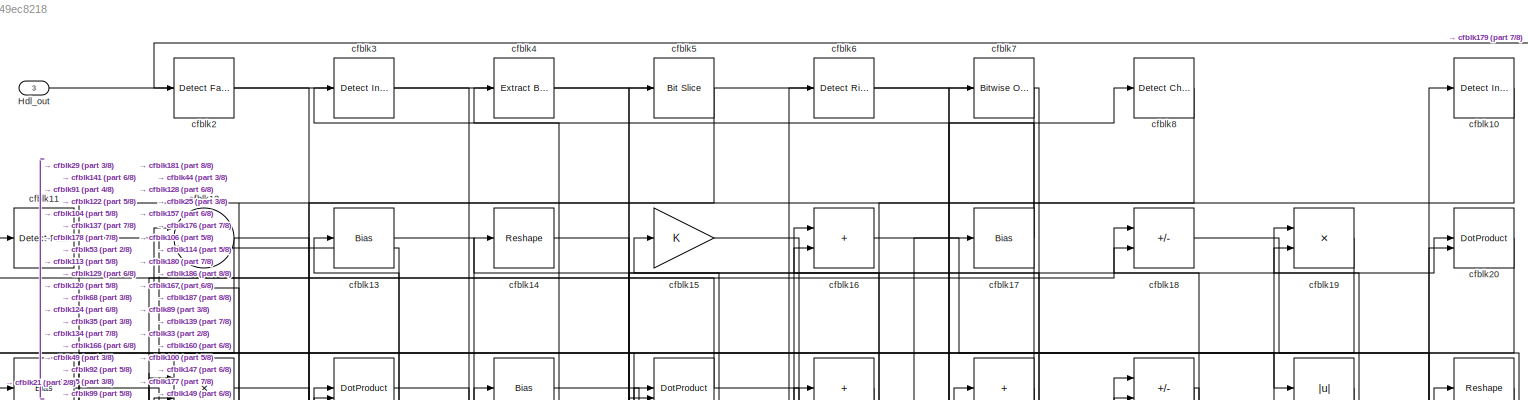
[diagram: root canvas - part 1/8, full width, top band]
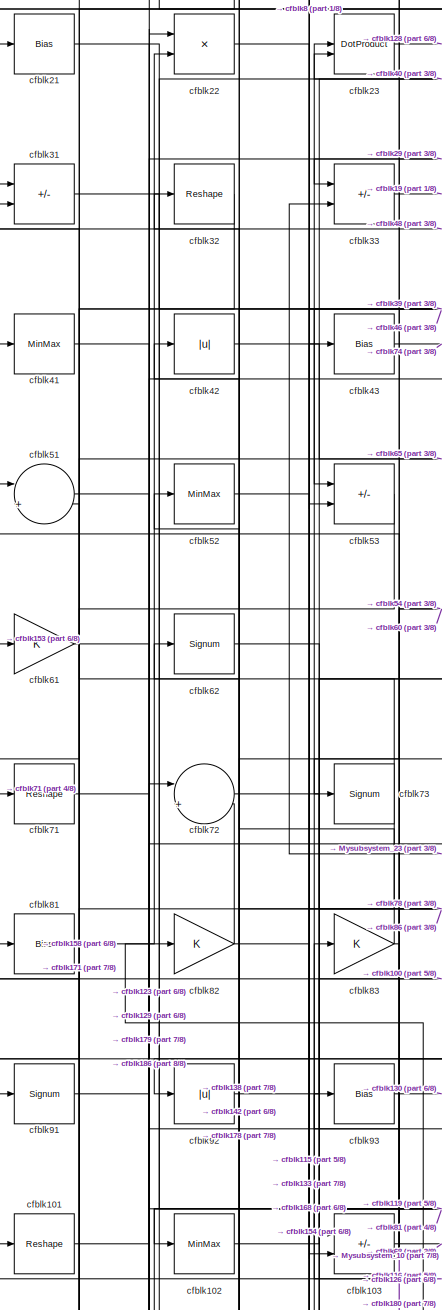
[diagram: root canvas - part 2/8, middle left region]
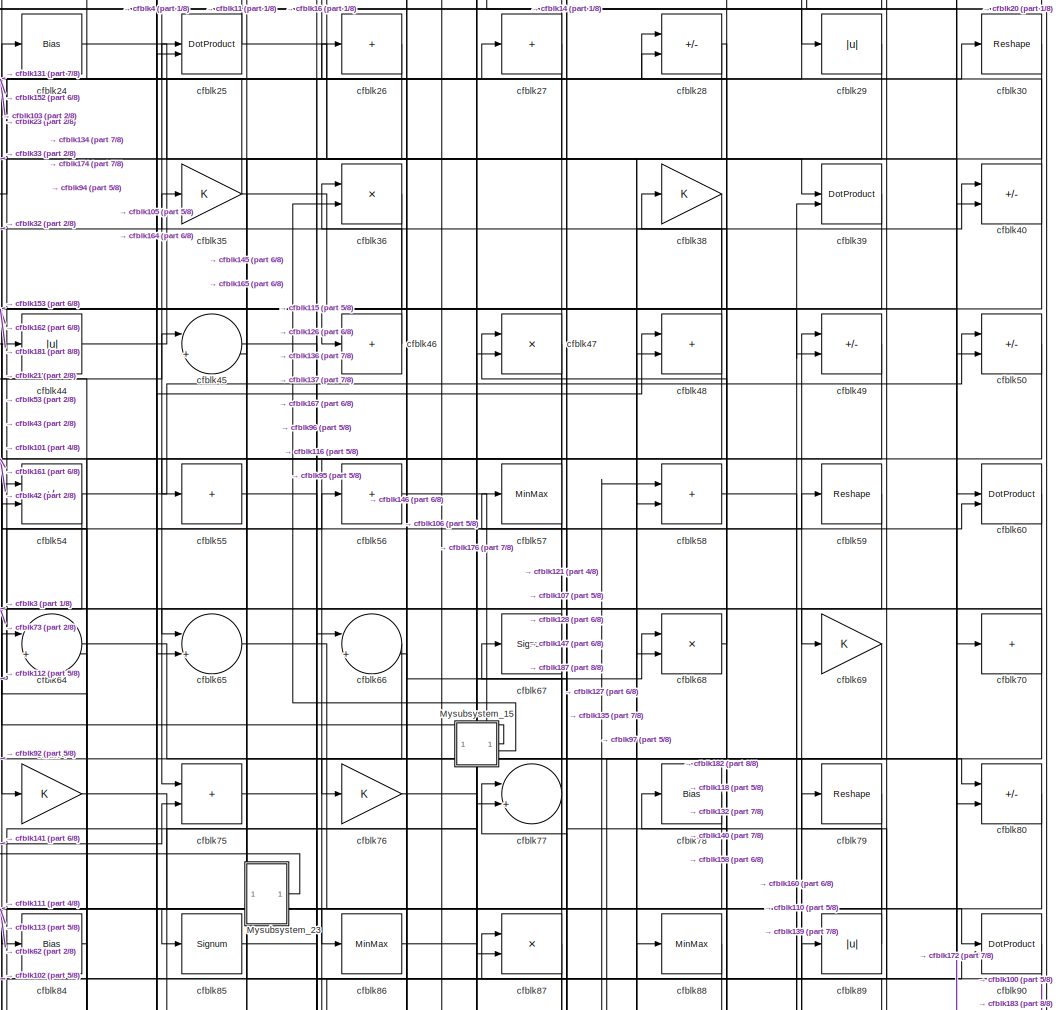
[diagram: root canvas - part 3/8, top center region]
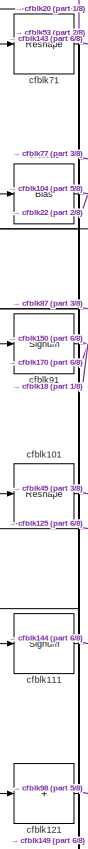
[diagram: root canvas - part 4/8, middle left region]
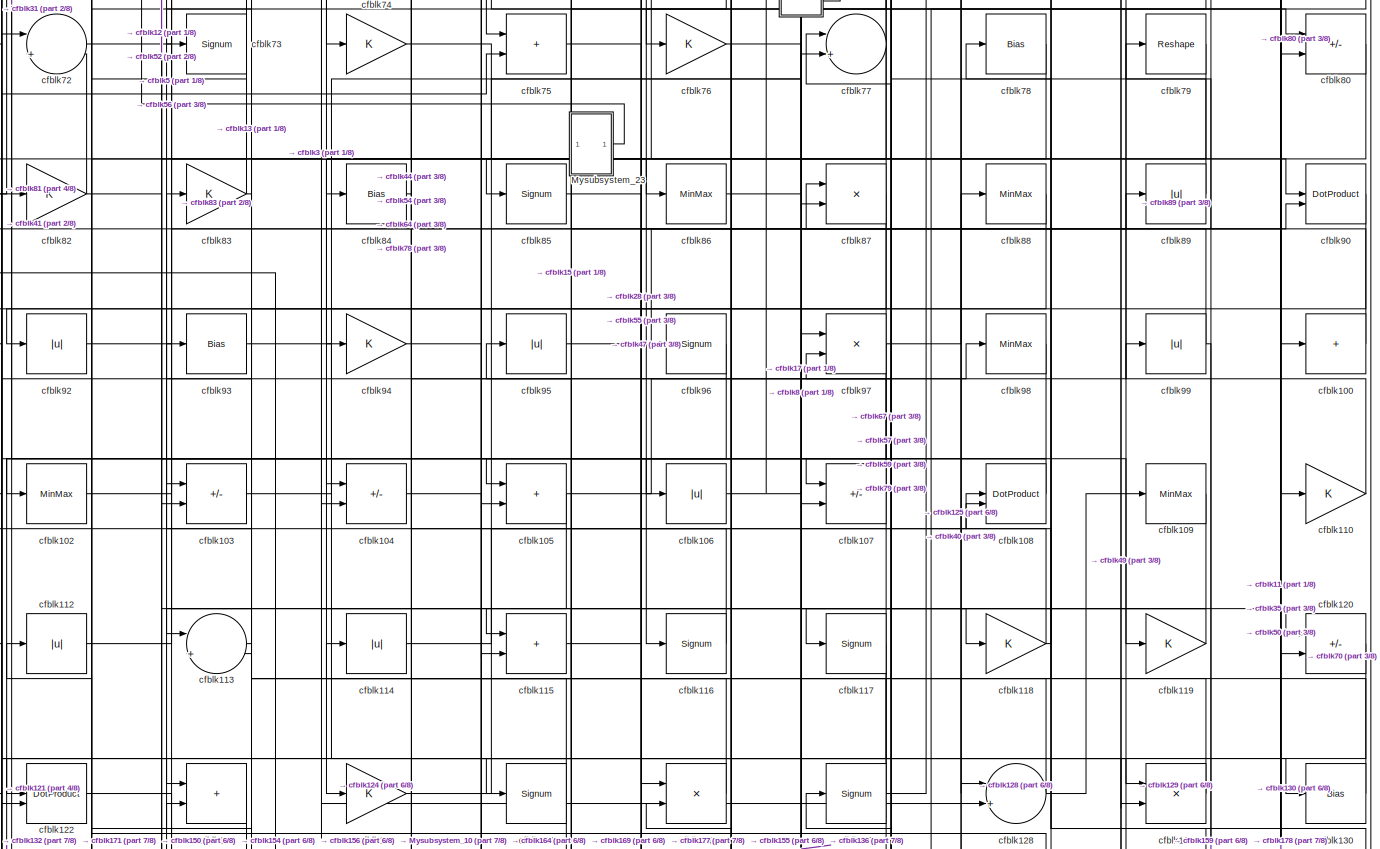
[diagram: root canvas - part 5/8, full width, middle band]
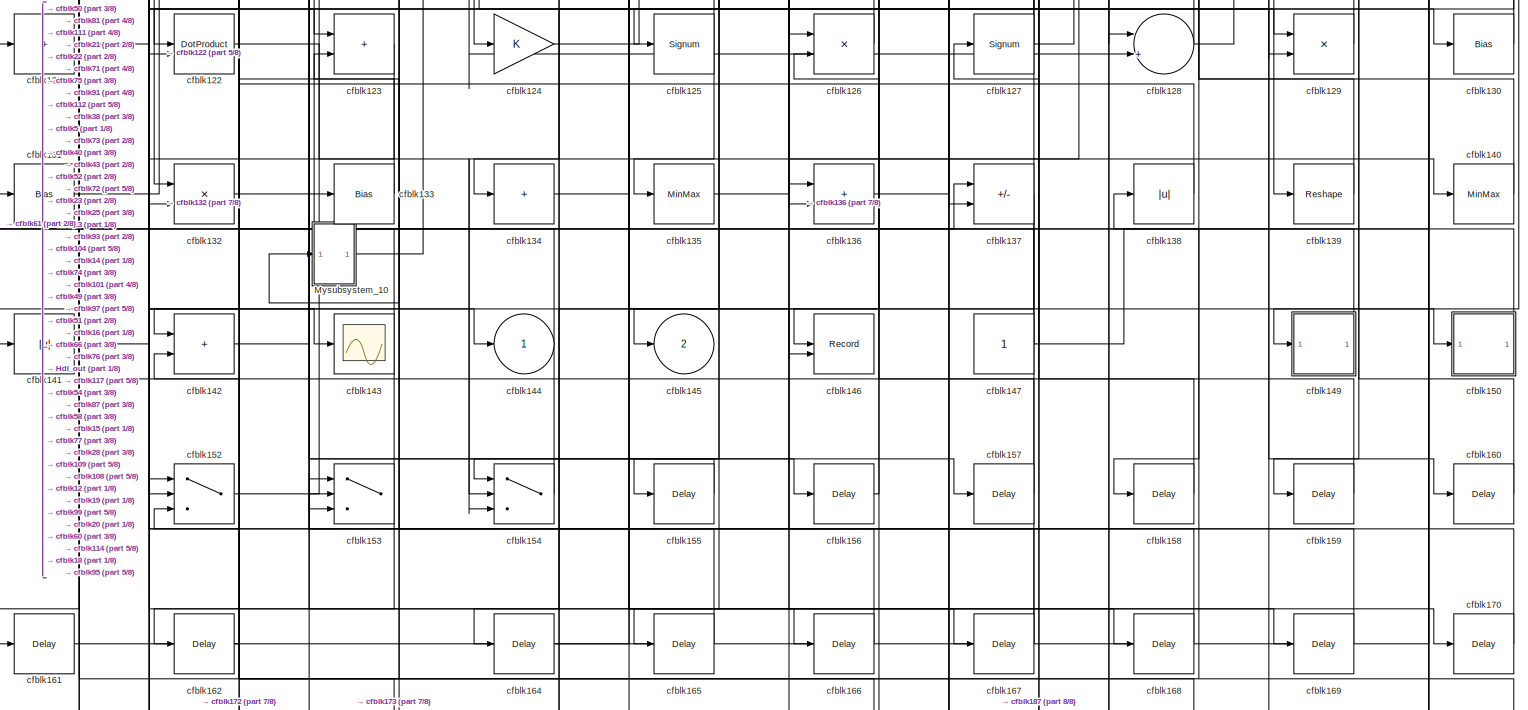
[diagram: root canvas - part 6/8, full width, bottom band]
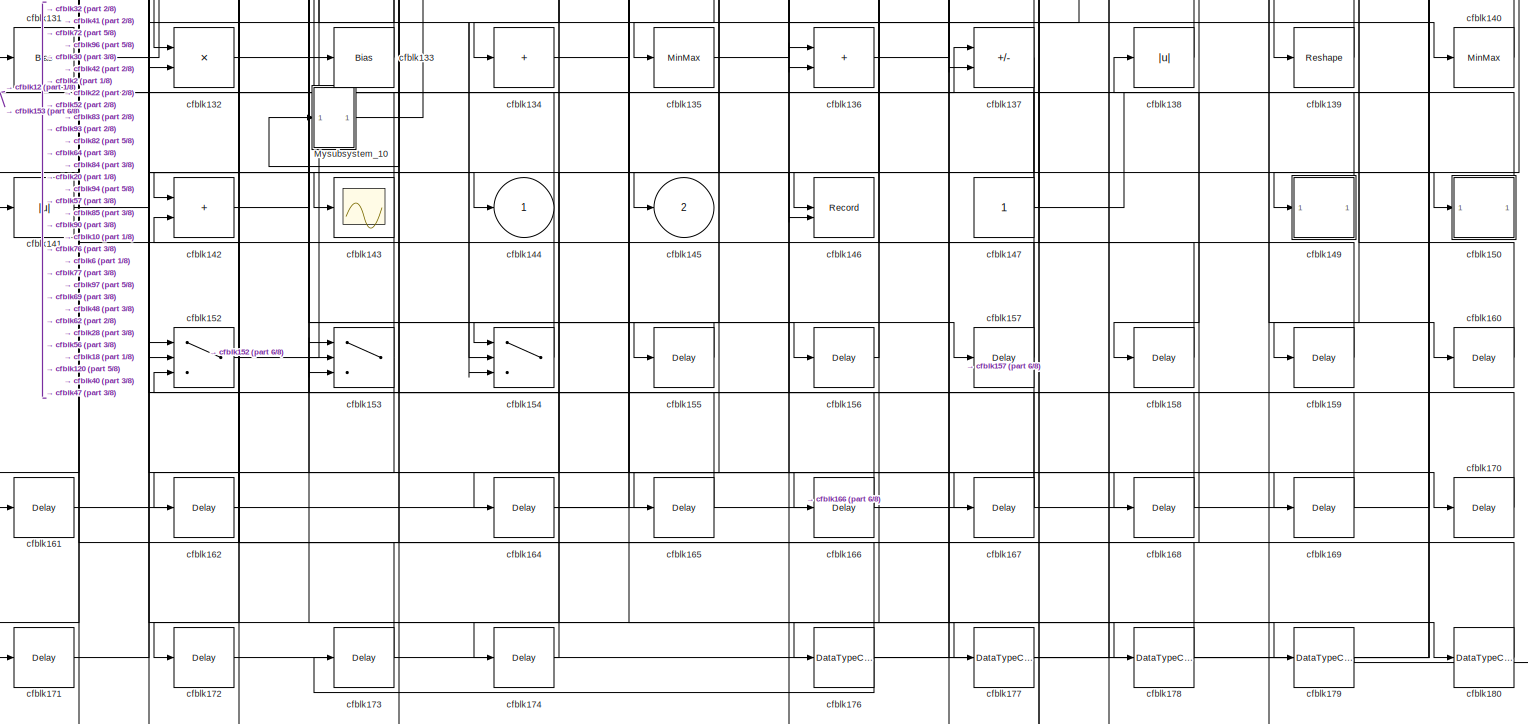
[diagram: root canvas - part 7/8, full width, bottom band]
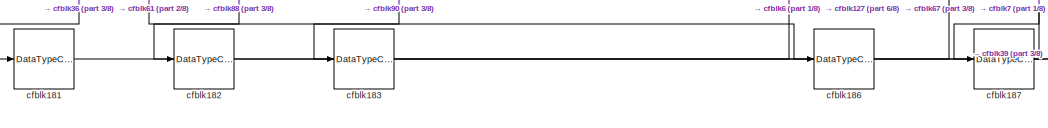
[diagram: root canvas - part 8/8, bottom center region]
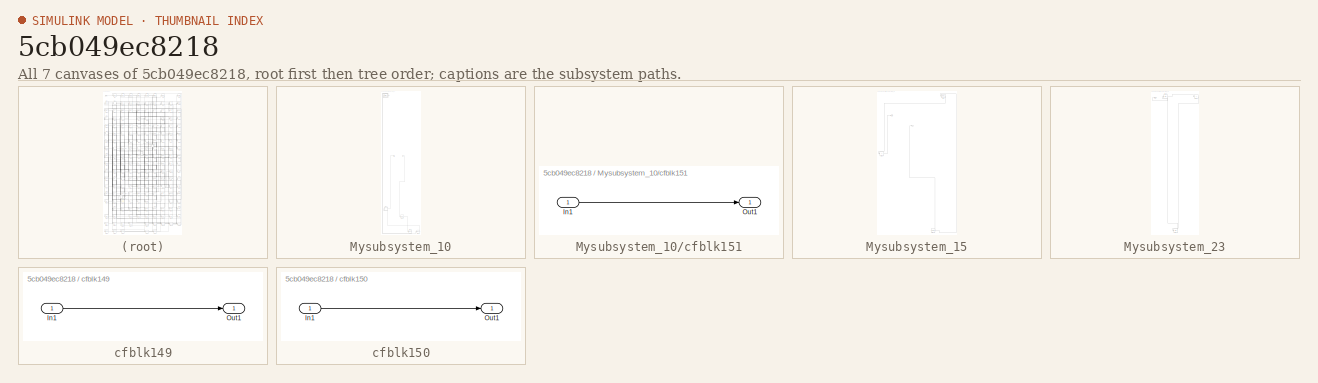
[diagram: thumbnail index - all 7 canvases of the model, root first then tree order]
MODEL slx_5cb049ec8218
KIND model
CONFIG AbsTol = auto
CONFIG EnableMultiTasking = off
CONFIG FixedStep = auto
CONFIG MaxStep = auto
CONFIG MinStep = auto
CONFIG RelTol = 1e-3
CONFIG SampleTimeConstraint = Unconstrained
CONFIG SolverName = VariableStepAuto
CONFIG StartTime = 0.0
CONFIG StopTime = 10.0
BLOCK [Outport] Hdl_out
  OutDataTypeStr = uint8
  Port = 3
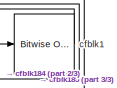
[diagram: Mysubsystem_10 - part 1/3, top left region]
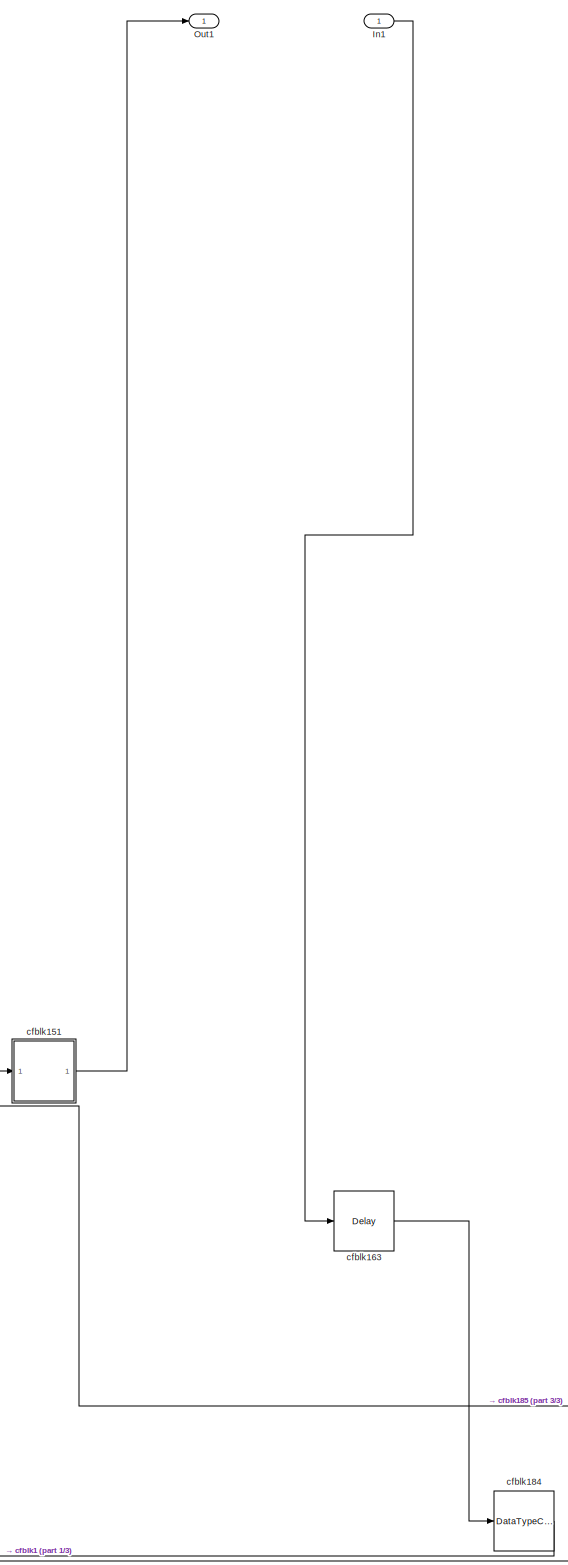
[diagram: Mysubsystem_10 - part 2/3, bottom center region]
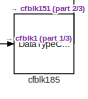
[diagram: Mysubsystem_10 - part 3/3, bottom right region]
BLOCK [SubSystem] Mysubsystem_10
  RTWFcnName = Mysubsystem_10
  RTWFcnNameOpts = User specified
  RTWFileNameOpts = Use function name
  RTWSystemCode = Reusable function
  TreatAsAtomicUnit = on
BLOCK [Inport] Mysubsystem_10/In1
BLOCK [Outport] Mysubsystem_10/Out1
BLOCK [Reference] Mysubsystem_10/cfblk1  REF=simulink/Logic and Bit
Operations/Bitwise
Operator
  LibrarySourceBlock = hdlsllib/Logic and Bit\nOperations/Bitwise\nOperator
  SourceBlock = simulink/Logic and Bit\nOperations/Bitwise\nOperator
  SourceType = Bitwise Operator
BLOCK [SubSystem] Mysubsystem_10/cfblk151
  LibrarySourceBlock = hdlsllib/Ports &\nSubsystems/Subsystem
BLOCK [Inport] Mysubsystem_10/cfblk151/In1
BLOCK [Outport] Mysubsystem_10/cfblk151/Out1
BLOCK [Delay] Mysubsystem_10/cfblk163
  InputPortMap = u0
  SampleTime = 1
BLOCK [DataTypeConversion] Mysubsystem_10/cfblk184
  OutDataTypeStr = boolean
  RndMeth = Floor
  SaturateOnIntegerOverflow = off
BLOCK [DataTypeConversion] Mysubsystem_10/cfblk185
  OutDataTypeStr = uint8
  RndMeth = Floor
  SaturateOnIntegerOverflow = off
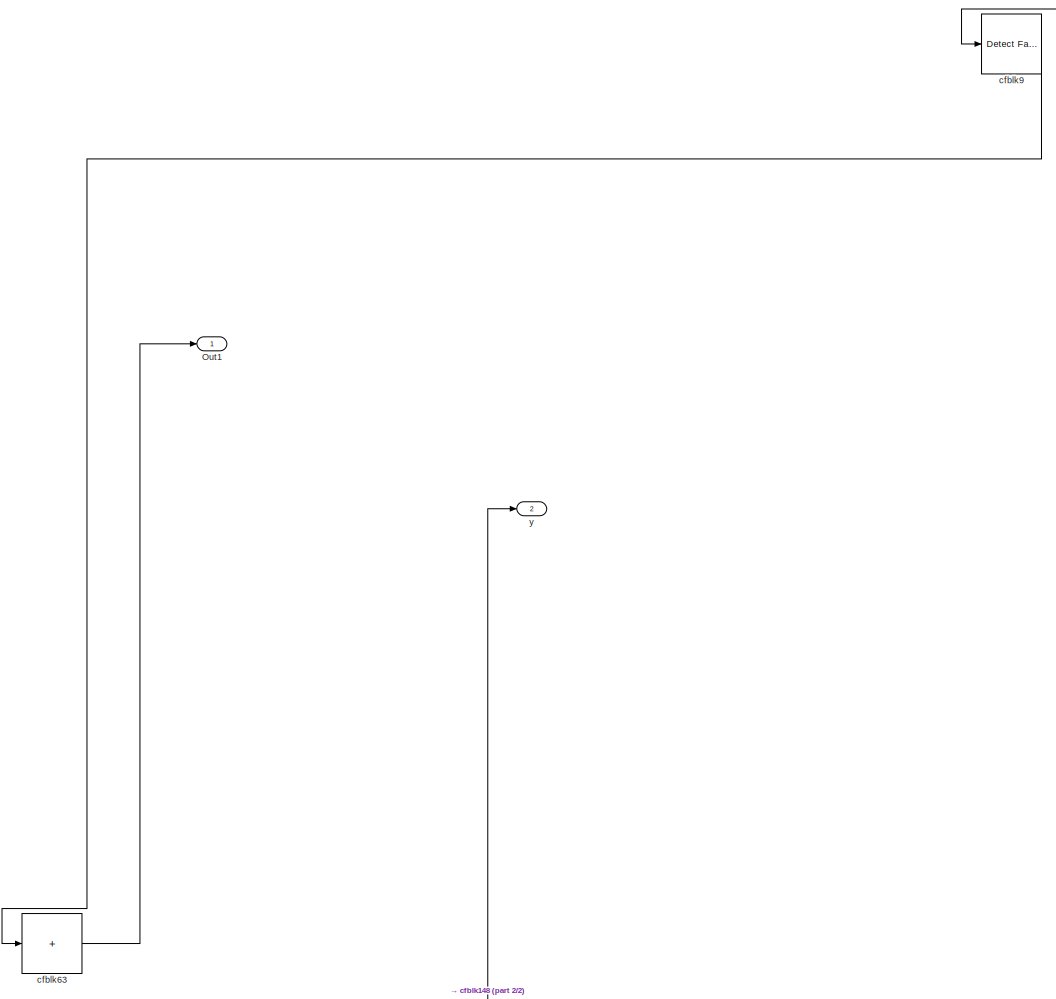
[diagram: Mysubsystem_15 - part 1/2, full width, top band]
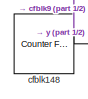
[diagram: Mysubsystem_15 - part 2/2, bottom right region]
BLOCK [SubSystem] Mysubsystem_15
  RTWFcnName = Mysubsystem_15
  RTWFcnNameOpts = User specified
  RTWFileNameOpts = Use function name
  RTWSystemCode = Reusable function
  TreatAsAtomicUnit = on
BLOCK [Outport] Mysubsystem_15/Out1
BLOCK [Reference] Mysubsystem_15/cfblk148  REF=hdlsllib/Sources/Counter
Free-Running
  SourceBlock = hdlsllib/Sources/Counter\nFree-Running
  SourceType = Counter Free-Running
BLOCK [Sum] Mysubsystem_15/cfblk63
  IconShape = rectangular
  Inputs = +
BLOCK [Reference] Mysubsystem_15/cfblk9  REF=hdlsllib/Logic and Bit
Operations/Detect Fall
Negative
  SourceBlock = hdlsllib/Logic and Bit\nOperations/Detect Fall\nNegative
  SourceType = Detect Fall Negative
BLOCK [Outport] Mysubsystem_15/y
  Port = 2
BLOCK [SubSystem] Mysubsystem_23
  RTWFcnName = Mysubsystem_23
  RTWFcnNameOpts = User specified
  RTWFileNameOpts = Use function name
  RTWSystemCode = Reusable function
  TreatAsAtomicUnit = on
BLOCK [Outport] Mysubsystem_23/Out1
BLOCK [Delay] Mysubsystem_23/cfblk175
  InputPortMap = u0
  SampleTime = 1
BLOCK [Bias] Mysubsystem_23/cfblk34
  Bias = 0.0
  SaturateOnIntegerOverflow = off
BLOCK [Sum] Mysubsystem_23/cfblk37
  IconShape = rectangular
  Inputs = +
BLOCK [Reference] cfblk10  REF=simulink/Logic and Bit
Operations/Detect
Increase
  LibrarySourceBlock = hdlsllib/Logic and Bit\nOperations/Detect\nIncrease
  SourceBlock = simulink/Logic and Bit\nOperations/Detect\nIncrease
  SourceType = Detect Increase
BLOCK [Sum] cfblk100
  IconShape = rectangular
  Inputs = +
  OutDataTypeStr = uint8
BLOCK [Reshape] cfblk101
BLOCK [MinMax] cfblk102
  OutDataTypeStr = uint8
BLOCK [Sum] cfblk103
  IconShape = rectangular
  Inputs = +-
  OutDataTypeStr = uint8
BLOCK [Sum] cfblk104
  IconShape = rectangular
  Inputs = +-
  OutDataTypeStr = uint8
BLOCK [Sum] cfblk105
  IconShape = rectangular
  OutDataTypeStr = uint8
BLOCK [Abs] cfblk106
  OutDataTypeStr = uint8
  SaturateOnIntegerOverflow = off
BLOCK [Sum] cfblk107
  IconShape = rectangular
  Inputs = +-
  OutDataTypeStr = uint8
BLOCK [DotProduct] cfblk108
  OutDataTypeStr = uint8
BLOCK [MinMax] cfblk109
  OutDataTypeStr = uint8
BLOCK [Reference] cfblk11  REF=hdlsllib/Logic and Bit
Operations/Detect Fall
Nonpositive
  SourceBlock = hdlsllib/Logic and Bit\nOperations/Detect Fall\nNonpositive
  SourceType = Detect Fall Nonpositive
BLOCK [Gain] cfblk110
  OutDataTypeStr = uint8
BLOCK [Signum] cfblk111
BLOCK [Abs] cfblk112
  OutDataTypeStr = uint8
  SaturateOnIntegerOverflow = off
BLOCK [Sum] cfblk113
  Inputs = |++
  OutDataTypeStr = uint8
BLOCK [Abs] cfblk114
  OutDataTypeStr = uint8
  SaturateOnIntegerOverflow = off
BLOCK [Sum] cfblk115
  IconShape = rectangular
  OutDataTypeStr = uint8
BLOCK [Signum] cfblk116
BLOCK [Signum] cfblk117
BLOCK [Gain] cfblk118
  OutDataTypeStr = uint8
BLOCK [Gain] cfblk119
  OutDataTypeStr = uint8
BLOCK [Sum] cfblk12
  Inputs = |++
  OutDataTypeStr = uint8
BLOCK [Sum] cfblk120
  IconShape = rectangular
  Inputs = +-
  OutDataTypeStr = uint8
BLOCK [Sum] cfblk121
  IconShape = rectangular
  Inputs = +
  OutDataTypeStr = uint8
BLOCK [DotProduct] cfblk122
  OutDataTypeStr = uint8
BLOCK [Sum] cfblk123
  IconShape = rectangular
  OutDataTypeStr = uint8
BLOCK [Gain] cfblk124
  OutDataTypeStr = uint8
BLOCK [Signum] cfblk125
BLOCK [Product] cfblk126
  Inputs = */
  OutDataTypeStr = uint8
  RndMeth = Zero
  SaturateOnIntegerOverflow = on
BLOCK [Signum] cfblk127
BLOCK [Sum] cfblk128
  Inputs = |++
  OutDataTypeStr = uint8
BLOCK [Product] cfblk129
  Inputs = */
  OutDataTypeStr = uint8
  RndMeth = Zero
  SaturateOnIntegerOverflow = on
BLOCK [Bias] cfblk13
  Bias = 0.0
  SaturateOnIntegerOverflow = off
BLOCK [Bias] cfblk130
  Bias = 0.0
  SaturateOnIntegerOverflow = off
BLOCK [Bias] cfblk131
  Bias = 0.0
  SaturateOnIntegerOverflow = off
BLOCK [Product] cfblk132
  Inputs = */
  OutDataTypeStr = uint8
  RndMeth = Zero
  SaturateOnIntegerOverflow = on
BLOCK [Bias] cfblk133
  Bias = 0.0
  SaturateOnIntegerOverflow = off
BLOCK [Sum] cfblk134
  IconShape = rectangular
  Inputs = +
  OutDataTypeStr = uint8
BLOCK [MinMax] cfblk135
  OutDataTypeStr = uint8
BLOCK [Sum] cfblk136
  IconShape = rectangular
  OutDataTypeStr = uint8
BLOCK [Sum] cfblk137
  IconShape = rectangular
  Inputs = +-
  OutDataTypeStr = uint8
BLOCK [Abs] cfblk138
  OutDataTypeStr = uint8
  SaturateOnIntegerOverflow = off
BLOCK [Reshape] cfblk139
BLOCK [Reshape] cfblk14
BLOCK [MinMax] cfblk140
  OutDataTypeStr = uint8
BLOCK [Abs] cfblk141
  OutDataTypeStr = uint8
  SaturateOnIntegerOverflow = off
BLOCK [Sum] cfblk142
  IconShape = rectangular
  OutDataTypeStr = uint8
BLOCK [Scope] cfblk143
  Floating = off
  NumInputPorts = 1
  ScopeSpecificationString = Simulink.scopes.TimeScopeBlockCfg('CurrentConfiguration', extmgr.ConfigurationSet(extmgr.Configuration('Core','General UI',true),extmgr.Configuration('Core','Source UI',true),extmgr.Configuration('Sources','WiredSimulink',true,'DataLoggingVariableName','ScopeData2','DataLoggingSaveFormat','Array','DataLoggingLimitDataPoints',true,'DataLoggingDecimation','1'),extmgr.Configuration('Visuals','Time Do...<+868ch>
BLOCK [Outport] cfblk144
  OutDataTypeStr = uint8
  VectorParamsAs1DForOutWhenUnconnected = off
BLOCK [Outport] cfblk145
  OutDataTypeStr = uint8
  Port = 2
  VectorParamsAs1DForOutWhenUnconnected = off
BLOCK [Record] cfblk146
  CompatibilityTag = XY
  FileSettingsInternal = {"entries":[{"content":{"excelSettings":{"content":{},"type":"Streamout.ExcelSettings"}},"type":"Streamout.FileSettingStorage","uuid":""}],"packageUris":["http:\/\/schema.mathworks.com\/mf0\/streamout_blocks\/R2020a"],"version":"1.0"}
  Layout = [1 1]
  SignalsInternal = {"entries":[{"content":{"signals":[{"content":{"blockPath":[],"dimensions":[1],"domain":"","lineColor":"#a2142f","plots":[1],"port":1,"signalID":60413,"signalName":"cfblk76"},"type":"RecordBlkView.Signal","uuid":""},{"content":{"blockPath":[],"dimensions":[1],"domain":"","lineColor":"#139fff","plots":[1],"port":2,"signalID":60416,"signalName":"cfblk74"},"type":"RecordBlkView.Signal","uuid":""}]},"...<+142ch>
  VisualizationBindings = {"xyplotplugin":{"info":[{"series":[{"bindingParametersList":[{"parameter":"X-Axis","signalID":60413,"signalName":"cfblk76"},{"parameter":"Y-Axis","signalID":60416,"signalName":"cfblk74"}],"seriesID":15302}],"subplotID":1}]}}
  st = -1
BLOCK [Constant] cfblk147
  OutDataTypeStr = uint8
  SampleTime = -1
BLOCK [SubSystem] cfblk149
  LibrarySourceBlock = hdlsllib/Ports &\nSubsystems/Subsystem
BLOCK [Inport] cfblk149/In1
BLOCK [Outport] cfblk149/Out1
BLOCK [Gain] cfblk15
  OutDataTypeStr = uint8
BLOCK [SubSystem] cfblk150
  LibrarySourceBlock = hdlsllib/Ports &\nSubsystems/Subsystem
BLOCK [Inport] cfblk150/In1
BLOCK [Outport] cfblk150/Out1
BLOCK [Switch] cfblk152
  InputSameDT = off
  OutDataTypeStr = uint8
  SaturateOnIntegerOverflow = off
BLOCK [Switch] cfblk153
  InputSameDT = off
  OutDataTypeStr = uint8
  SaturateOnIntegerOverflow = off
BLOCK [Switch] cfblk154
  InputSameDT = off
  OutDataTypeStr = uint8
  SaturateOnIntegerOverflow = off
BLOCK [Delay] cfblk155
  InputPortMap = u0
  SampleTime = 1
BLOCK [Delay] cfblk156
  InputPortMap = u0
  SampleTime = 1
BLOCK [Delay] cfblk157
  InputPortMap = u0
  SampleTime = 1
BLOCK [Delay] cfblk158
  InputPortMap = u0
  SampleTime = 1
BLOCK [Delay] cfblk159
  InputPortMap = u0
  SampleTime = 1
BLOCK [Sum] cfblk16
  IconShape = rectangular
  OutDataTypeStr = uint8
BLOCK [Delay] cfblk160
  InputPortMap = u0
  SampleTime = 1
BLOCK [Delay] cfblk161
  InputPortMap = u0
  SampleTime = 1
BLOCK [Delay] cfblk162
  InputPortMap = u0
  SampleTime = 1
BLOCK [Delay] cfblk164
  InputPortMap = u0
  SampleTime = 1
BLOCK [Delay] cfblk165
  InputPortMap = u0
  SampleTime = 1
BLOCK [Delay] cfblk166
  InputPortMap = u0
  SampleTime = 1
BLOCK [Delay] cfblk167
  InputPortMap = u0
  SampleTime = 1
BLOCK [Delay] cfblk168
  InputPortMap = u0
  SampleTime = 1
BLOCK [Delay] cfblk169
  InputPortMap = u0
  SampleTime = 1
BLOCK [Bias] cfblk17
  Bias = 0.0
  SaturateOnIntegerOverflow = off
BLOCK [Delay] cfblk170
  InputPortMap = u0
  SampleTime = 1
BLOCK [Delay] cfblk171
  InputPortMap = u0
  SampleTime = 1
BLOCK [Delay] cfblk172
  InputPortMap = u0
  SampleTime = 1
BLOCK [Delay] cfblk173
  InputPortMap = u0
  SampleTime = 1
BLOCK [Delay] cfblk174
  InputPortMap = u0
  SampleTime = 1
BLOCK [DataTypeConversion] cfblk176
  OutDataTypeStr = uint8
  RndMeth = Floor
  SaturateOnIntegerOverflow = off
BLOCK [DataTypeConversion] cfblk177
  OutDataTypeStr = uint8
  RndMeth = Floor
  SaturateOnIntegerOverflow = off
BLOCK [DataTypeConversion] cfblk178
  OutDataTypeStr = uint8
  RndMeth = Floor
  SaturateOnIntegerOverflow = off
BLOCK [DataTypeConversion] cfblk179
  OutDataTypeStr = uint8
  RndMeth = Floor
  SaturateOnIntegerOverflow = off
BLOCK [Sum] cfblk18
  IconShape = rectangular
  Inputs = +-
  OutDataTypeStr = uint8
BLOCK [DataTypeConversion] cfblk180
  OutDataTypeStr = uint8
  RndMeth = Floor
  SaturateOnIntegerOverflow = off
BLOCK [DataTypeConversion] cfblk181
  OutDataTypeStr = uint8
  RndMeth = Floor
  SaturateOnIntegerOverflow = off
BLOCK [DataTypeConversion] cfblk182
  OutDataTypeStr = uint8
  RndMeth = Floor
  SaturateOnIntegerOverflow = off
BLOCK [DataTypeConversion] cfblk183
  OutDataTypeStr = uint8
  RndMeth = Floor
  SaturateOnIntegerOverflow = off
BLOCK [DataTypeConversion] cfblk186
  OutDataTypeStr = uint8
  RndMeth = Floor
  SaturateOnIntegerOverflow = off
BLOCK [DataTypeConversion] cfblk187
  OutDataTypeStr = uint8
  RndMeth = Floor
  SaturateOnIntegerOverflow = off
BLOCK [Product] cfblk19
  Inputs = */
  OutDataTypeStr = uint8
  RndMeth = Zero
  SaturateOnIntegerOverflow = on
BLOCK [Reference] cfblk2  REF=hdlsllib/Logic and Bit
Operations/Detect Fall
Nonpositive
  SourceBlock = hdlsllib/Logic and Bit\nOperations/Detect Fall\nNonpositive
  SourceType = Detect Fall Nonpositive
BLOCK [DotProduct] cfblk20
  OutDataTypeStr = uint8
BLOCK [Bias] cfblk21
  Bias = 0.0
  SaturateOnIntegerOverflow = off
BLOCK [Product] cfblk22
  Inputs = */
  OutDataTypeStr = uint8
  RndMeth = Zero
  SaturateOnIntegerOverflow = on
BLOCK [DotProduct] cfblk23
  OutDataTypeStr = uint8
BLOCK [Bias] cfblk24
  Bias = 0.0
  SaturateOnIntegerOverflow = off
BLOCK [DotProduct] cfblk25
  OutDataTypeStr = uint8
BLOCK [Sum] cfblk26
  IconShape = rectangular
  Inputs = +
  OutDataTypeStr = uint8
BLOCK [Sum] cfblk27
  IconShape = rectangular
  Inputs = +
  OutDataTypeStr = uint8
BLOCK [Sum] cfblk28
  IconShape = rectangular
  Inputs = +-
  OutDataTypeStr = uint8
BLOCK [Abs] cfblk29
  OutDataTypeStr = uint8
  SaturateOnIntegerOverflow = off
BLOCK [Reference] cfblk3  REF=simulink/Logic and Bit
Operations/Detect
Increase
  LibrarySourceBlock = hdlsllib/Logic and Bit\nOperations/Detect\nIncrease
  SourceBlock = simulink/Logic and Bit\nOperations/Detect\nIncrease
  SourceType = Detect Increase
BLOCK [Reshape] cfblk30
BLOCK [Sum] cfblk31
  IconShape = rectangular
  Inputs = +-
  OutDataTypeStr = uint8
BLOCK [Reshape] cfblk32
BLOCK [Sum] cfblk33
  IconShape = rectangular
  Inputs = +-
  OutDataTypeStr = uint8
BLOCK [Gain] cfblk35
  OutDataTypeStr = uint8
BLOCK [Product] cfblk36
  Inputs = */
  OutDataTypeStr = uint8
  RndMeth = Zero
  SaturateOnIntegerOverflow = on
BLOCK [Gain] cfblk38
  OutDataTypeStr = uint8
BLOCK [DotProduct] cfblk39
  OutDataTypeStr = uint8
BLOCK [Reference] cfblk4  REF=simulink/Logic and Bit
Operations/Extract Bits
  LibrarySourceBlock = hdlsllib/Logic and Bit\nOperations/Extract Bits
  SourceBlock = simulink/Logic and Bit\nOperations/Extract Bits
  SourceType = Extract Bits
BLOCK [Sum] cfblk40
  IconShape = rectangular
  Inputs = +-
  OutDataTypeStr = uint8
BLOCK [MinMax] cfblk41
  OutDataTypeStr = uint8
BLOCK [Abs] cfblk42
  OutDataTypeStr = uint8
  SaturateOnIntegerOverflow = off
BLOCK [Bias] cfblk43
  Bias = 0.0
  SaturateOnIntegerOverflow = off
BLOCK [Abs] cfblk44
  OutDataTypeStr = uint8
  SaturateOnIntegerOverflow = off
BLOCK [Sum] cfblk45
  Inputs = |++
  OutDataTypeStr = uint8
BLOCK [Sum] cfblk46
  IconShape = rectangular
  Inputs = +
  OutDataTypeStr = uint8
BLOCK [Product] cfblk47
  Inputs = */
  OutDataTypeStr = uint8
  RndMeth = Zero
  SaturateOnIntegerOverflow = on
BLOCK [Sum] cfblk48
  IconShape = rectangular
  OutDataTypeStr = uint8
BLOCK [Sum] cfblk49
  IconShape = rectangular
  Inputs = +-
  OutDataTypeStr = uint8
BLOCK [Reference] cfblk5  REF=hdlsllib/Logic and Bit
Operations/Bit Slice
  SourceBlock = hdlsllib/Logic and Bit\nOperations/Bit Slice
  SourceType = Bit Slice
BLOCK [Sum] cfblk50
  IconShape = rectangular
  Inputs = +-
  OutDataTypeStr = uint8
BLOCK [Sum] cfblk51
  Inputs = |++
  OutDataTypeStr = uint8
BLOCK [MinMax] cfblk52
  OutDataTypeStr = uint8
BLOCK [Sum] cfblk53
  IconShape = rectangular
  Inputs = +-
  OutDataTypeStr = uint8
BLOCK [Sum] cfblk54
  IconShape = rectangular
  Inputs = +-
  OutDataTypeStr = uint8
BLOCK [Sum] cfblk55
  IconShape = rectangular
  Inputs = +
  OutDataTypeStr = uint8
BLOCK [Sum] cfblk56
  IconShape = rectangular
  Inputs = +
  OutDataTypeStr = uint8
BLOCK [MinMax] cfblk57
  OutDataTypeStr = uint8
BLOCK [Sum] cfblk58
  IconShape = rectangular
  OutDataTypeStr = uint8
BLOCK [Reshape] cfblk59
BLOCK [Reference] cfblk6  REF=hdlsllib/Logic and Bit
Operations/Detect Rise
Nonnegative
  SourceBlock = hdlsllib/Logic and Bit\nOperations/Detect Rise\nNonnegative
  SourceType = Detect Rise Nonnegative
BLOCK [DotProduct] cfblk60
  OutDataTypeStr = uint8
BLOCK [Gain] cfblk61
  OutDataTypeStr = uint8
BLOCK [Signum] cfblk62
BLOCK [Sum] cfblk64
  Inputs = |++
  OutDataTypeStr = uint8
BLOCK [Sum] cfblk65
  Inputs = |++
  OutDataTypeStr = uint8
BLOCK [Sum] cfblk66
  Inputs = |++
  OutDataTypeStr = uint8
BLOCK [Signum] cfblk67
BLOCK [Product] cfblk68
  Inputs = */
  OutDataTypeStr = uint8
  RndMeth = Zero
  SaturateOnIntegerOverflow = on
BLOCK [Gain] cfblk69
  OutDataTypeStr = uint8
BLOCK [Reference] cfblk7  REF=simulink/Logic and Bit
Operations/Bitwise
Operator
  LibrarySourceBlock = hdlsllib/Logic and Bit\nOperations/Bitwise\nOperator
  SourceBlock = simulink/Logic and Bit\nOperations/Bitwise\nOperator
  SourceType = Bitwise Operator
BLOCK [Sum] cfblk70
  IconShape = rectangular
  Inputs = +
  OutDataTypeStr = uint8
BLOCK [Reshape] cfblk71
BLOCK [Sum] cfblk72
  Inputs = |++
  OutDataTypeStr = uint8
BLOCK [Signum] cfblk73
BLOCK [Gain] cfblk74
  OutDataTypeStr = uint8
BLOCK [Sum] cfblk75
  IconShape = rectangular
  OutDataTypeStr = uint8
BLOCK [Gain] cfblk76
  OutDataTypeStr = uint8
BLOCK [Sum] cfblk77
  Inputs = |++
  OutDataTypeStr = uint8
BLOCK [Bias] cfblk78
  Bias = 0.0
  SaturateOnIntegerOverflow = off
BLOCK [Reshape] cfblk79
BLOCK [Reference] cfblk8  REF=simulink/Logic and Bit
Operations/Detect
Change
  LibrarySourceBlock = hdlsllib/Logic and Bit\nOperations/Detect\nChange
  SourceBlock = simulink/Logic and Bit\nOperations/Detect\nChange
  SourceType = Detect Change
BLOCK [Sum] cfblk80
  IconShape = rectangular
  Inputs = +-
  OutDataTypeStr = uint8
BLOCK [Bias] cfblk81
  Bias = 0.0
  SaturateOnIntegerOverflow = off
BLOCK [Gain] cfblk82
  OutDataTypeStr = uint8
BLOCK [Gain] cfblk83
  OutDataTypeStr = uint8
BLOCK [Bias] cfblk84
  Bias = 0.0
  SaturateOnIntegerOverflow = off
BLOCK [Signum] cfblk85
BLOCK [MinMax] cfblk86
  OutDataTypeStr = uint8
BLOCK [Product] cfblk87
  Inputs = */
  OutDataTypeStr = uint8
  RndMeth = Zero
  SaturateOnIntegerOverflow = on
BLOCK [MinMax] cfblk88
  OutDataTypeStr = uint8
BLOCK [Abs] cfblk89
  OutDataTypeStr = uint8
  SaturateOnIntegerOverflow = off
BLOCK [DotProduct] cfblk90
  OutDataTypeStr = uint8
BLOCK [Signum] cfblk91
BLOCK [Abs] cfblk92
  OutDataTypeStr = uint8
  SaturateOnIntegerOverflow = off
BLOCK [Bias] cfblk93
  Bias = 0.0
  SaturateOnIntegerOverflow = off
BLOCK [Gain] cfblk94
  OutDataTypeStr = uint8
BLOCK [Abs] cfblk95
  OutDataTypeStr = uint8
  SaturateOnIntegerOverflow = off
BLOCK [Signum] cfblk96
BLOCK [Product] cfblk97
  Inputs = */
  OutDataTypeStr = uint8
  RndMeth = Zero
  SaturateOnIntegerOverflow = on
BLOCK [MinMax] cfblk98
  OutDataTypeStr = uint8
BLOCK [Abs] cfblk99
  OutDataTypeStr = uint8
  SaturateOnIntegerOverflow = off
LINE Mysubsystem_10/In1:1 -> Mysubsystem_10/cfblk163:1
LINE Mysubsystem_10/cfblk151/In1:1 -> Mysubsystem_10/cfblk151/Out1:1
LINE Mysubsystem_10/cfblk151:1 -> Mysubsystem_10/Out1:1
LINE Mysubsystem_10/cfblk163:1 -> Mysubsystem_10/cfblk184:1
LINE Mysubsystem_10/cfblk184:1 -> Mysubsystem_10/cfblk1:1
LINE Mysubsystem_10/cfblk185:1 -> Mysubsystem_10/cfblk151:1
LINE Mysubsystem_10/cfblk1:1 -> Mysubsystem_10/cfblk185:1
LINE Mysubsystem_10:1 -> cfblk82:1
NET Mysubsystem_15/cfblk148:1 -> Mysubsystem_15/cfblk9:1, Mysubsystem_15/y:1
LINE Mysubsystem_15/cfblk63:1 -> Mysubsystem_15/Out1:1
LINE Mysubsystem_15/cfblk9:1 -> Mysubsystem_15/cfblk63:1
LINE Mysubsystem_15:1 -> cfblk24:1
LINE Mysubsystem_15:2 -> cfblk36:2
LINE Mysubsystem_23/cfblk175:1 -> Mysubsystem_23/cfblk34:1
NET Mysubsystem_23/cfblk34:1 -> Mysubsystem_23/Out1:1, Mysubsystem_23/cfblk37:1
LINE Mysubsystem_23/cfblk37:1 -> Mysubsystem_23/cfblk175:1
LINE Mysubsystem_23:1 -> cfblk33:2
NET cfblk100:1 -> cfblk41:1, cfblk57:1, cfblk79:1
LINE cfblk101:1 -> cfblk45:1
LINE cfblk102:1 -> cfblk50:2
LINE cfblk103:1 -> cfblk68:1
LINE cfblk104:1 -> cfblk169:1
NET cfblk105:1 -> cfblk115:1, cfblk99:1
NET cfblk106:1 -> cfblk17:1, cfblk47:2
LINE cfblk107:1 -> cfblk64:2
LINE cfblk108:1 -> cfblk105:1
LINE cfblk109:1 -> cfblk155:1
LINE cfblk10:1 -> cfblk176:1
LINE cfblk110:1 -> cfblk89:1
LINE cfblk111:1 -> cfblk144:1
LINE cfblk112:1 -> cfblk56:1
LINE cfblk113:1 -> cfblk13:1
LINE cfblk114:1 -> cfblk8:1
LINE cfblk115:1 -> cfblk28:1
LINE cfblk116:1 -> cfblk83:1
LINE cfblk117:1 -> cfblk164:1
NET cfblk118:1 -> cfblk44:1, cfblk78:1
LINE cfblk119:1 -> cfblk117:1
LINE cfblk11:1 -> cfblk100:1
LINE cfblk120:1 -> cfblk122:2
LINE cfblk121:1 -> cfblk98:1
NET cfblk122:1 -> cfblk154:3, cfblk156:1
LINE cfblk123:1 -> cfblk152:2
LINE cfblk124:1 -> cfblk108:2
NET cfblk125:1 -> cfblk101:1, cfblk154:2
LINE cfblk126:1 -> cfblk51:1
NET cfblk127:1 -> cfblk54:1, cfblk58:1
NET cfblk128:1 -> cfblk109:1, cfblk77:1
NET cfblk129:1 -> cfblk108:1, cfblk12:2
NET cfblk12:1 -> cfblk104:1, cfblk137:1
NET cfblk130:1 -> cfblk114:1, cfblk95:1
LINE cfblk131:1 -> cfblk30:1
LINE cfblk132:1 -> cfblk157:1
LINE cfblk133:1 -> cfblk52:1
LINE cfblk134:1 -> cfblk20:1
LINE cfblk135:1 -> cfblk90:2
LINE cfblk136:1 -> cfblk97:1
LINE cfblk137:1 -> cfblk174:1
LINE cfblk138:1 -> cfblk62:1
LINE cfblk139:1 -> cfblk18:1
LINE cfblk13:1 -> cfblk124:1
LINE cfblk140:1 -> cfblk47:1
LINE cfblk141:1 -> cfblk75:2
LINE cfblk142:1 -> cfblk43:1
NET cfblk147:1 -> cfblk20:2, cfblk66:2, cfblk87:1
LINE cfblk149/In1:1 -> cfblk149/Out1:1
LINE cfblk149:1 -> cfblk81:1
LINE cfblk14:1 -> cfblk166:1
LINE cfblk150/In1:1 -> cfblk150/Out1:1
LINE cfblk150:1 -> cfblk112:1
LINE cfblk152:1 -> cfblk25:1
NET cfblk153:1 -> cfblk172:1, cfblk61:1
LINE cfblk154:1 -> cfblk23:2
LINE cfblk155:1 -> cfblk154:1
LINE cfblk156:1 -> cfblk126:2
LINE cfblk157:1 -> cfblk16:2
LINE cfblk158:1 -> cfblk51:2
LINE cfblk159:1 -> cfblk97:2
LINE cfblk15:1 -> cfblk128:1
LINE cfblk160:1 -> cfblk19:2
LINE cfblk161:1 -> cfblk60:1
LINE cfblk162:1 -> cfblk142:2
LINE cfblk164:1 -> cfblk25:2
LINE cfblk165:1 -> cfblk153:2
LINE cfblk166:1 -> cfblk136:1
NET cfblk167:1 -> Hdl_out:1, cfblk153:1
LINE cfblk168:1 -> cfblk22:1
LINE cfblk169:1 -> cfblk152:1
LINE cfblk16:1 -> cfblk29:1
LINE cfblk170:1 -> cfblk123:2
LINE cfblk171:1 -> cfblk72:1
LINE cfblk172:1 -> cfblk40:2
LINE cfblk173:1 -> cfblk152:3
LINE cfblk174:1 -> cfblk64:1
NET cfblk176:1 -> cfblk131:1, cfblk173:1, cfblk48:2, cfblk77:2
LINE cfblk177:1 -> cfblk10:1
NET cfblk178:1 -> cfblk120:2, cfblk42:1
LINE cfblk179:1 -> cfblk2:1
LINE cfblk17:1 -> cfblk3:1
NET cfblk180:1 -> cfblk12:1, cfblk138:1, cfblk93:1
LINE cfblk181:1 -> cfblk6:1
LINE cfblk182:1 -> cfblk39:2
LINE cfblk183:1 -> cfblk88:1
LINE cfblk186:1 -> cfblk7:1
NET cfblk187:1 -> cfblk127:1, cfblk67:1
LINE cfblk18:1 -> cfblk149:1
LINE cfblk19:1 -> cfblk21:1
NET cfblk20:1 -> cfblk75:1, cfblk91:1
NET cfblk21:1 -> cfblk129:2, cfblk46:1
LINE cfblk22:1 -> cfblk133:1
LINE cfblk23:1 -> cfblk128:2
LINE cfblk24:1 -> cfblk39:1
NET cfblk25:1 -> cfblk11:1, cfblk70:1
LINE cfblk26:1 -> cfblk65:1
LINE cfblk27:1 -> cfblk85:1
NET cfblk28:1 -> cfblk132:2, cfblk158:1
LINE cfblk29:1 -> cfblk33:1
LINE cfblk2:1 -> cfblk178:1
LINE cfblk30:1 -> cfblk58:2
LINE cfblk31:1 -> cfblk119:1
LINE cfblk32:1 -> cfblk171:1
LINE cfblk33:1 -> cfblk19:1
NET cfblk35:1 -> cfblk110:1, cfblk45:2, cfblk4:1
LINE cfblk36:1 -> cfblk181:1
LINE cfblk38:1 -> cfblk162:1
LINE cfblk39:1 -> cfblk53:1
NET cfblk3:1 -> cfblk120:1, cfblk68:2
NET cfblk40:1 -> cfblk153:3, cfblk23:1
LINE cfblk41:1 -> cfblk179:1
LINE cfblk42:1 -> cfblk65:2
LINE cfblk43:1 -> cfblk74:1
LINE cfblk44:1 -> cfblk16:1
LINE cfblk45:1 -> cfblk66:1
LINE cfblk46:1 -> cfblk36:1
LINE cfblk47:1 -> cfblk116:1
NET cfblk48:1 -> cfblk32:1, cfblk35:1, cfblk84:1
NET cfblk49:1 -> cfblk165:1, cfblk76:1
LINE cfblk4:1 -> cfblk49:2
LINE cfblk50:1 -> cfblk161:1
LINE cfblk51:1 -> cfblk123:1
NET cfblk52:1 -> cfblk115:2, cfblk168:1
LINE cfblk53:1 -> cfblk71:1
NET cfblk54:1 -> cfblk103:1, cfblk48:1, cfblk50:1
LINE cfblk55:1 -> cfblk96:1
LINE cfblk56:1 -> cfblk139:1
NET cfblk57:1 -> cfblk136:2, cfblk55:1
NET cfblk58:1 -> cfblk160:1, cfblk28:2, cfblk80:2
LINE cfblk59:1 -> cfblk107:1
NET cfblk5:1 -> cfblk122:1, cfblk141:1
LINE cfblk60:1 -> cfblk73:1
LINE cfblk61:1 -> cfblk186:1
LINE cfblk62:1 -> cfblk86:1
NET cfblk64:1 -> cfblk27:1, cfblk80:1
LINE cfblk65:1 -> cfblk90:1
LINE cfblk66:1 -> cfblk145:1
NET cfblk67:1 -> cfblk87:2, cfblk92:1
LINE cfblk68:1 -> cfblk38:1
LINE cfblk69:1 -> cfblk135:1
LINE cfblk6:1 -> cfblk180:1
NET cfblk70:1 -> cfblk106:1, cfblk69:1
LINE cfblk71:1 -> cfblk143:1
NET cfblk72:1 -> cfblk118:1, cfblk129:1
NET cfblk73:1 -> cfblk142:1, cfblk31:2
NET cfblk74:1 -> cfblk126:1, cfblk146:2, cfblk59:1
LINE cfblk75:1 -> cfblk167:1
NET cfblk76:1 -> cfblk140:1, cfblk146:1
NET cfblk77:1 -> cfblk111:1, cfblk26:1
NET cfblk78:1 -> cfblk103:2, cfblk113:1
NET cfblk79:1 -> cfblk105:2, cfblk94:1
LINE cfblk7:1 -> cfblk187:1
LINE cfblk80:1 -> cfblk113:2
NET cfblk81:1 -> cfblk104:2, cfblk22:2
NET cfblk82:1 -> cfblk107:2, cfblk72:2
NET cfblk83:1 -> Mysubsystem_10:1, cfblk31:1
LINE cfblk84:1 -> cfblk134:1
LINE cfblk85:1 -> cfblk137:2
LINE cfblk86:1 -> cfblk60:2
LINE cfblk87:1 -> cfblk121:1
LINE cfblk88:1 -> cfblk182:1
LINE cfblk89:1 -> cfblk14:1
LINE cfblk8:1 -> cfblk53:2
LINE cfblk90:1 -> cfblk183:1
NET cfblk91:1 -> cfblk150:1, cfblk170:1, cfblk18:2
LINE cfblk92:1 -> cfblk5:1
LINE cfblk93:1 -> cfblk130:1
NET cfblk94:1 -> cfblk177:1, cfblk54:2
LINE cfblk95:1 -> cfblk49:1
LINE cfblk96:1 -> cfblk132:1
NET cfblk97:1 -> cfblk125:1, cfblk40:1
LINE cfblk98:1 -> cfblk102:1
NET cfblk99:1 -> cfblk159:1, cfblk15:1
note: NET lines group one-source signal fan-out (src -> all destinations, sorted); 1:1 wires keep LINE
